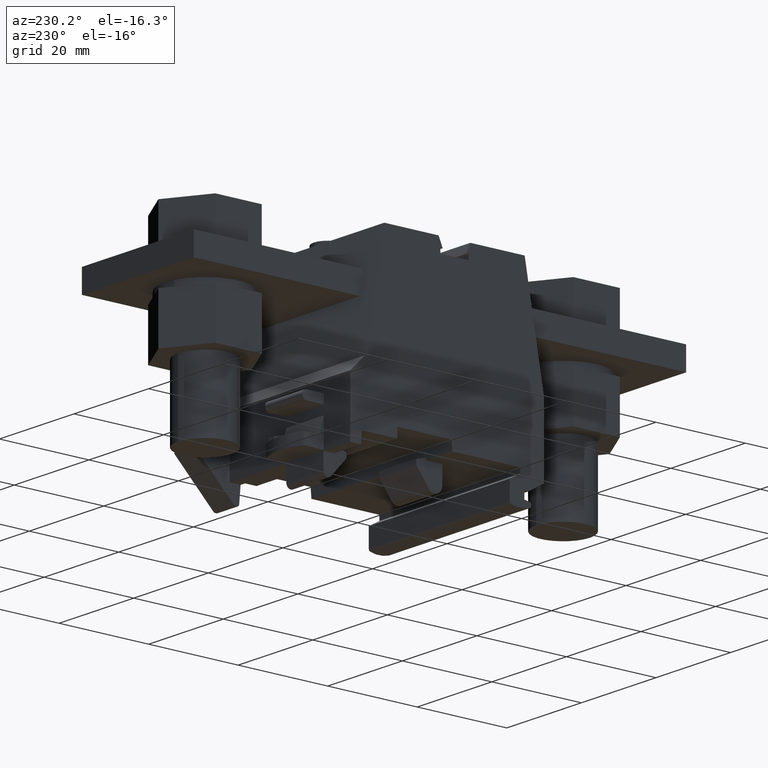
[diagram: clean part render]
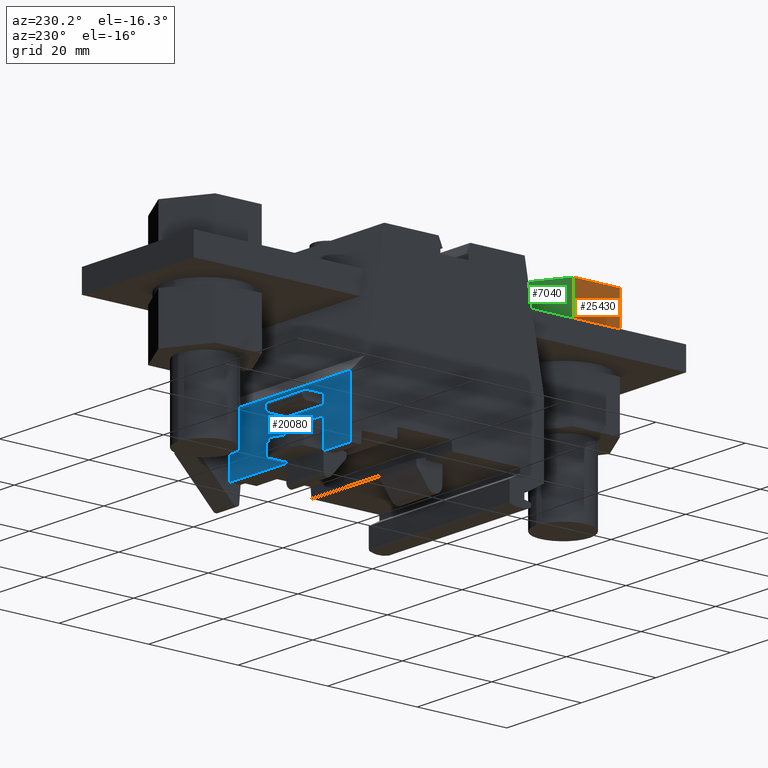
[diagram: same view with three faces highlighted in distinct colors, each labeled with its STEP entity id]
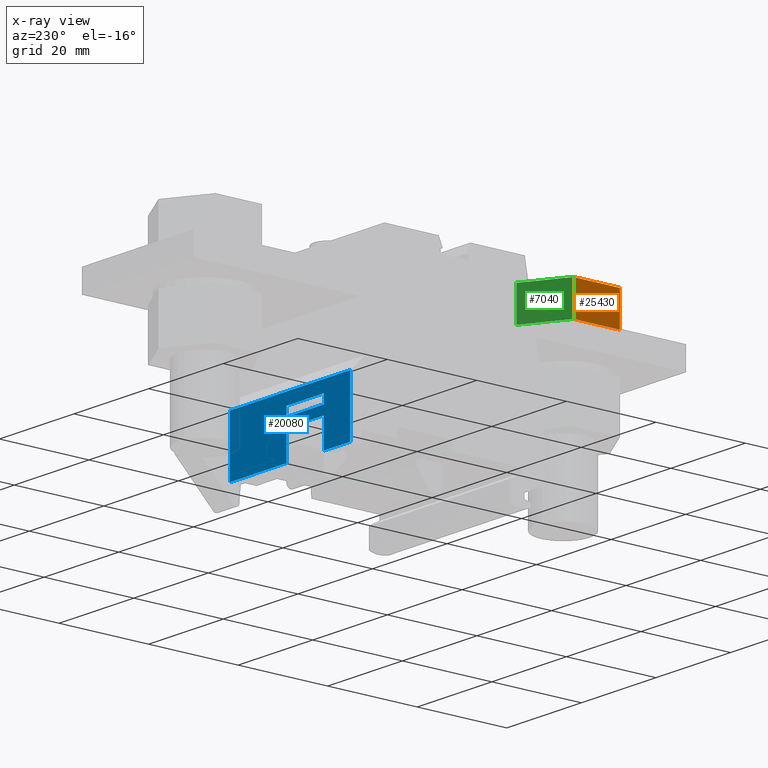
[diagram: x-ray of the same camera — body ghosted, the three highlighted faces saturated]
A machine part, auxiliary view with three faces highlighted in distinct colors.
The next image is the same camera in x-ray (body ghosted, the three faces saturated) — at least one of them is partly hidden behind the body in this view.
Their STEP definitions:

[orange] entity #25430 — the highlighted planar face has unit normal (1, 0, 0).
#6700=CARTESIAN_POINT('',(-64.5044706568989,408.024378044622,30.5));
#6710=VERTEX_POINT('',#6700);
#6920=CARTESIAN_POINT('',(-64.5044706569098,415.524378044622,30.5));
#6930=VERTEX_POINT('',#6920);
#6960=CARTESIAN_POINT('',(-64.5044706569098,373.024378044622,30.5));
#6970=DIRECTION('',(0.,1.,0.));
#6980=VECTOR('',#6970,1.);
#6990=LINE('',#6960,#6980);
#7000=EDGE_CURVE('',#6710,#6930,#6990,.T.);
#7270=CARTESIAN_POINT('',(-54.1121658114911,408.024378044622,
30.4999999999906));
#7280=VERTEX_POINT('',#7270);
#7310=CARTESIAN_POINT('',(-54.1121658114965,373.024378044622,30.5));
#7320=DIRECTION('',(0.,1.,0.));
#7330=VECTOR('',#7320,1.);
#7340=LINE('',#7310,#7330);
#7350=CARTESIAN_POINT('',(-54.1121658114965,415.524378044622,30.5));
#7360=VERTEX_POINT('',#7350);
#7370=EDGE_CURVE('',#7280,#7360,#7340,.T.);
#7920=CARTESIAN_POINT('',(-59.3083182342031,415.524378044622,30.5));
#7930=DIRECTION('',(1.,0.,-5.55111512312578E-17));
#7940=VECTOR('',#7930,1.);
#7950=LINE('',#7920,#7940);
#7960=EDGE_CURVE('',#6930,#7360,#7950,.T.);
#12710=CARTESIAN_POINT('',(-59.3083182342031,408.024378044622,30.5));
#12720=DIRECTION('',(-1.,0.,5.55111512312578E-17));
#12730=VECTOR('',#12720,1.);
#12740=LINE('',#12710,#12730);
#12750=CARTESIAN_POINT('',(-59.3083182342032,408.024378044622,30.5));
#12760=VERTEX_POINT('',#12750);
#12770=EDGE_CURVE('',#12760,#6710,#12740,.T.);
#25300=CARTESIAN_POINT('',(-64.5044706568989,408.024378044622,30.5));
#25310=DIRECTION('',(-5.55111512312578E-17,0.,-1.));
#25320=DIRECTION('',(-1.,0.,5.55111512312578E-17));
#25330=AXIS2_PLACEMENT_3D('',#25300,#25310,#25320);
#25340=PLANE('',#25330);
#25350=EDGE_CURVE('',#7280,#12760,#12740,.T.);
#25360=ORIENTED_EDGE('',*,*,#25350,.F.);
#25370=ORIENTED_EDGE('',*,*,#12770,.F.);
#25380=ORIENTED_EDGE('',*,*,#7000,.F.);
#25390=ORIENTED_EDGE('',*,*,#7960,.F.);
#25400=ORIENTED_EDGE('',*,*,#7370,.T.);
#25410=EDGE_LOOP('',(#25400,#25390,#25380,#25370,#25360));
#25420=FACE_OUTER_BOUND('',#25410,.T.);
#25430=ADVANCED_FACE('',(#25420),#25340,.F.);

[blue] entity #20080 — the highlighted planar face has unit normal (0, -1, 0).
#4350=CARTESIAN_POINT('',(-122.608300205194,372.974377855495,40.4));
#4360=VERTEX_POINT('',#4350);
#4390=CARTESIAN_POINT('',(-122.608300205194,0.,40.4));
#4400=DIRECTION('',(0.,1.,0.));
#4410=VECTOR('',#4400,1.);
#4420=LINE('',#4390,#4410);
#4430=CARTESIAN_POINT('',(-122.608300205194,385.774377855494,40.4));
#4440=VERTEX_POINT('',#4430);
#4450=EDGE_CURVE('',#4360,#4440,#4420,.T.);
#18530=CARTESIAN_POINT('',(-122.608300205194,385.774377855495,
8.09999999999999));
#18540=VERTEX_POINT('',#18530);
#18660=CARTESIAN_POINT('',(-122.608300205194,385.774377855495,0.));
#18670=DIRECTION('',(0.,0.,-1.));
#18680=VECTOR('',#18670,1.);
#18690=LINE('',#18660,#18680);
#18700=EDGE_CURVE('',#4440,#18540,#18690,.T.);
#19190=CARTESIAN_POINT('',(-122.608300205194,373.974377855495,40.4));
#19200=DIRECTION('',(1.,0.,0.));
#19210=DIRECTION('',(0.,-1.,0.));
#19220=AXIS2_PLACEMENT_3D('',#19190,#19200,#19210);
#19230=PLANE('',#19220);
#19240=CARTESIAN_POINT('',(-122.608300205194,381.224377855495,0.));
#19250=DIRECTION('',(0.,0.,1.));
#19260=VECTOR('',#19250,1.);
#19270=LINE('',#19240,#19260);
#19280=CARTESIAN_POINT('',(-122.608300205194,381.224377855495,
23.3499999999623));
#19290=VERTEX_POINT('',#19280);
#19300=CARTESIAN_POINT('',(-122.608300205194,381.224377855495,
33.3499999999623));
#19310=VERTEX_POINT('',#19300);
#19320=EDGE_CURVE('',#19290,#19310,#19270,.T.);
#19330=ORIENTED_EDGE('',*,*,#19320,.F.);
#19340=CARTESIAN_POINT('',(-122.608300205194,0.,33.3499999999623));
#19350=DIRECTION('',(0.,-1.,0.));
#19360=VECTOR('',#19350,1.);
#19370=LINE('',#19340,#19360);
#19380=CARTESIAN_POINT('',(-122.608300205194,383.224377855495,
33.3499999999623));
#19390=VERTEX_POINT('',#19380);
#19400=EDGE_CURVE('',#19390,#19310,#19370,.T.);
#19410=ORIENTED_EDGE('',*,*,#19400,.T.);
#19420=CARTESIAN_POINT('',(-122.608300205194,383.224377855495,0.));
#19430=DIRECTION('',(0.,0.,-1.));
#19440=VECTOR('',#19430,1.);
#19450=LINE('',#19420,#19440);
#19460=CARTESIAN_POINT('',(-122.608300205194,383.224377855495,
23.3499999999623));
#19470=VERTEX_POINT('',#19460);
#19480=EDGE_CURVE('',#19390,#19470,#19450,.T.);
#19490=ORIENTED_EDGE('',*,*,#19480,.F.);
#19500=CARTESIAN_POINT('',(-122.608300205194,0.,23.3499999999623));
#19510=DIRECTION('',(0.,-1.,0.));
#19520=VECTOR('',#19510,1.);
#19530=LINE('',#19500,#19520);
#19540=EDGE_CURVE('',#19470,#19290,#19530,.T.);
#19550=ORIENTED_EDGE('',*,*,#19540,.F.);
#19560=EDGE_LOOP('',(#19550,#19490,#19410,#19330));
#19570=FACE_BOUND('',#19560,.T.);
#19580=CARTESIAN_POINT('',(-122.608300205194,0.,8.09999999999999));
#19590=DIRECTION('',(0.,1.,0.));
#19600=VECTOR('',#19590,1.);
#19610=LINE('',#19580,#19600);
#19620=CARTESIAN_POINT('',(-122.608300205194,372.974377855495,
8.09999999999999));
#19630=VERTEX_POINT('',#19620);
#19640=EDGE_CURVE('',#19630,#18540,#19610,.T.);
#19650=ORIENTED_EDGE('',*,*,#19640,.F.);
#19660=ORIENTED_EDGE('',*,*,#18700,.T.);
#19670=ORIENTED_EDGE('',*,*,#4450,.T.);
#19680=CARTESIAN_POINT('',(-122.608300205194,372.974377855495,0.));
#19690=DIRECTION('',(0.,0.,-1.));
#19700=VECTOR('',#19690,1.);
#19710=LINE('',#19680,#19700);
#19720=CARTESIAN_POINT('',(-122.608300205194,372.974377855495,
33.2999999999623));
#19730=VERTEX_POINT('',#19720);
#19740=EDGE_CURVE('',#4360,#19730,#19710,.T.);
#19750=ORIENTED_EDGE('',*,*,#19740,.F.);
#19760=CARTESIAN_POINT('',(-122.608300205194,0.,33.2999999999623));
#19770=DIRECTION('',(0.,-1.,0.));
#19780=VECTOR('',#19770,1.);
#19790=LINE('',#19760,#19780);
#19800=CARTESIAN_POINT('',(-122.608300205194,379.274377855495,
33.2999999999623));
#19810=VERTEX_POINT('',#19800);
#19820=EDGE_CURVE('',#19810,#19730,#19790,.T.);
#19830=ORIENTED_EDGE('',*,*,#19820,.T.);
#19840=CARTESIAN_POINT('',(-122.608300205194,379.274377855495,0.));
#19850=DIRECTION('',(0.,0.,-1.));
#19860=VECTOR('',#19850,1.);
#19870=LINE('',#19840,#19860);
#19880=CARTESIAN_POINT('',(-122.608300205194,379.274377855495,
23.3499999999623));
#19890=VERTEX_POINT('',#19880);
#19900=EDGE_CURVE('',#19810,#19890,#19870,.T.);
#19910=ORIENTED_EDGE('',*,*,#19900,.F.);
#19920=CARTESIAN_POINT('',(-122.608300205194,0.,23.3499999999623));
#19930=DIRECTION('',(0.,1.,0.));
#19940=VECTOR('',#19930,1.);
#19950=LINE('',#19920,#19940);
#19960=CARTESIAN_POINT('',(-122.608300205194,372.974377855495,
23.3499999999623));
#19970=VERTEX_POINT('',#19960);
#19980=EDGE_CURVE('',#19970,#19890,#19950,.T.);
#19990=ORIENTED_EDGE('',*,*,#19980,.T.);
#20000=CARTESIAN_POINT('',(-122.608300205194,372.974377855495,0.));
#20010=DIRECTION('',(0.,0.,-1.));
#20020=VECTOR('',#20010,1.);
#20030=LINE('',#20000,#20020);
#20040=EDGE_CURVE('',#19970,#19630,#20030,.T.);
#20050=ORIENTED_EDGE('',*,*,#20040,.F.);
#20060=EDGE_LOOP('',(#20050,#19990,#19910,#19830,#19750,#19670,#19660,
#19650));
#20070=FACE_OUTER_BOUND('',#20060,.T.);
#20080=ADVANCED_FACE('',(#19570,#20070),#19230,.F.);

[green] entity #7040 — the highlighted planar face has unit normal (0.5, -0.866, 0).
#6610=CARTESIAN_POINT('',(-69.700623079611,408.024378044622,
21.5000000000095));
#6620=DIRECTION('',(0.866025403784438,0.,-0.500000000000001));
#6630=DIRECTION('',(-0.500000000000001,0.,-0.866025403784438));
#6640=AXIS2_PLACEMENT_3D('',#6610,#6620,#6630);
#6650=PLANE('',#6640);
#6660=CARTESIAN_POINT('',(-69.7006230796164,408.024378044622,21.5));
#6670=DIRECTION('',(-0.500000000000001,0.,-0.866025403784438));
#6680=VECTOR('',#6670,1.);
#6690=LINE('',#6660,#6680);
#6700=CARTESIAN_POINT('',(-64.5044706568989,408.024378044622,30.5));
#6710=VERTEX_POINT('',#6700);
#6720=CARTESIAN_POINT('',(-67.1025468682631,408.024378044622,26.));
#6730=VERTEX_POINT('',#6720);
#6740=EDGE_CURVE('',#6710,#6730,#6690,.T.);
#6750=ORIENTED_EDGE('',*,*,#6740,.F.);
#6760=CARTESIAN_POINT('',(-69.700623079611,408.024378044622,
21.5000000000095));
#6770=VERTEX_POINT('',#6760);
#6780=EDGE_CURVE('',#6730,#6770,#6690,.T.);
#6790=ORIENTED_EDGE('',*,*,#6780,.F.);
#6800=CARTESIAN_POINT('',(-69.7006230796164,373.024378044622,
21.5000000000001));
#6810=DIRECTION('',(0.,1.,0.));
#6820=VECTOR('',#6810,1.);
#6830=LINE('',#6800,#6820);
#6840=CARTESIAN_POINT('',(-69.7006230796164,415.524378044622,
21.5000000000001));
#6850=VERTEX_POINT('',#6840);
#6860=EDGE_CURVE('',#6770,#6850,#6830,.T.);
#6870=ORIENTED_EDGE('',*,*,#6860,.F.);
#6880=CARTESIAN_POINT('',(-69.7006230796164,415.524378044622,21.5));
#6890=DIRECTION('',(0.500000000000001,0.,0.866025403784438));
#6900=VECTOR('',#6890,1.);
#6910=LINE('',#6880,#6900);
#6920=CARTESIAN_POINT('',(-64.5044706569098,415.524378044622,30.5));
#6930=VERTEX_POINT('',#6920);
#6940=EDGE_CURVE('',#6850,#6930,#6910,.T.);
#6950=ORIENTED_EDGE('',*,*,#6940,.F.);
#6960=CARTESIAN_POINT('',(-64.5044706569098,373.024378044622,30.5));
#6970=DIRECTION('',(0.,1.,0.));
#6980=VECTOR('',#6970,1.);
#6990=LINE('',#6960,#6980);
#7000=EDGE_CURVE('',#6710,#6930,#6990,.T.);
#7010=ORIENTED_EDGE('',*,*,#7000,.T.);
#7020=EDGE_LOOP('',(#7010,#6950,#6870,#6790,#6750));
#7030=FACE_OUTER_BOUND('',#7020,.T.);
#7040=ADVANCED_FACE('',(#7030),#6650,.F.);